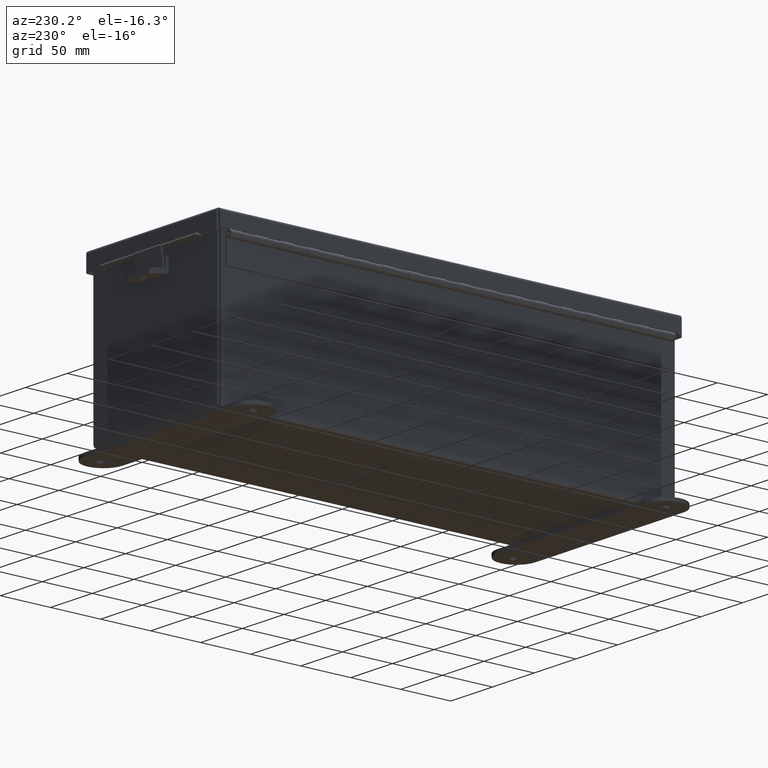
[diagram: clean part render]
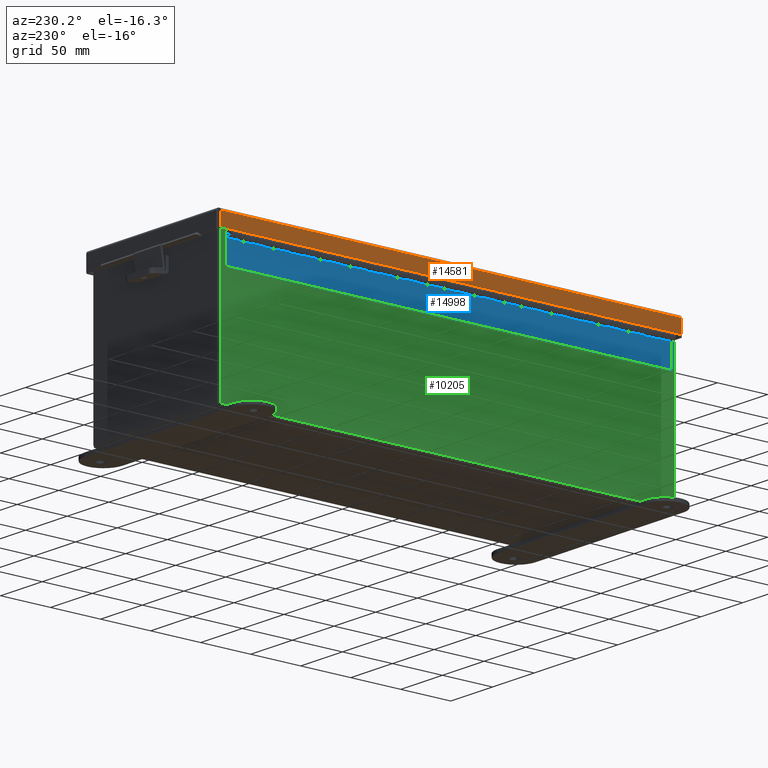
[diagram: same view with three faces highlighted in distinct colors, each labeled with its STEP entity id]
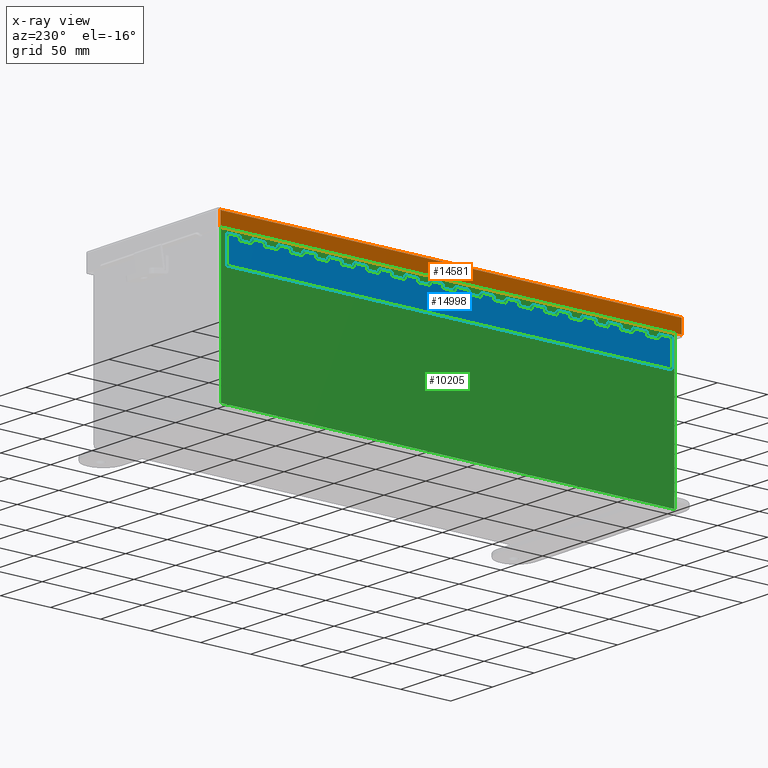
[diagram: x-ray of the same camera — body ghosted, the three highlighted faces saturated]
A machine part, auxiliary view with three faces highlighted in distinct colors.
The next image is the same camera in x-ray (body ghosted, the three faces saturated) — at least one of them is partly hidden behind the body in this view.
Their STEP definitions:

[orange] entity #14581 — the highlighted planar face has unit normal (1, -0, 0).
#373 = VERTEX_POINT ( 'NONE', #15086 ) ;
#503 = VECTOR ( 'NONE', #13393, 39.37007874015748100 ) ;
#731 = CARTESIAN_POINT ( 'NONE',  ( 3.156250000000004900, -9.074478932188125000, 0.5502999999999999000 ) ) ;
#1418 = LINE ( 'NONE', #7446, #503 ) ;
#2014 = EDGE_CURVE ( 'NONE', #16479, #373, #18198, .T. ) ;
#2129 = CARTESIAN_POINT ( 'NONE',  ( 3.156250000000005300, 9.074478932188142700, -5.463695987328526400E-015 ) ) ;
#2416 = ORIENTED_EDGE ( 'NONE', *, *, #2014, .T. ) ;
#2480 = EDGE_CURVE ( 'NONE', #373, #9408, #7404, .T. ) ;
#2581 = DIRECTION ( 'NONE',  ( 3.675400233576648500E-029, -1.000000000000000000, -1.735493991486226000E-029 ) ) ;
#3051 = CARTESIAN_POINT ( 'NONE',  ( 3.156250000000005300, -4.268512490100411300E-018, -1.311287036958846300E-014 ) ) ;
#3116 = CARTESIAN_POINT ( 'NONE',  ( 3.156249999999997800, -9.074478932188125000, 0.01300000000000010700 ) ) ;
#3522 = VECTOR ( 'NONE', #2581, 39.37007874015748100 ) ;
#3941 = ORIENTED_EDGE ( 'NONE', *, *, #2480, .T. ) ;
#4245 = CARTESIAN_POINT ( 'NONE',  ( 3.156250000000005300, -9.156249999999991100, 0.01300000000000010700 ) ) ;
#5043 = LINE ( 'NONE', #4245, #16287 ) ;
#6051 = DIRECTION ( 'NONE',  ( -1.000000000000000000, 3.684812725836437100E-029, 3.971430846686189200E-015 ) ) ;
#6520 = VECTOR ( 'NONE', #8001, 39.37007874015748100 ) ;
#6861 = VERTEX_POINT ( 'NONE', #3116 ) ;
#6881 = EDGE_CURVE ( 'NONE', #6861, #9408, #1418, .T. ) ;
#6928 = CARTESIAN_POINT ( 'NONE',  ( 3.156250000000012400, -4.268512490100411300E-018, 0.5502999999999999000 ) ) ;
#7404 = LINE ( 'NONE', #6928, #3522 ) ;
#7446 = CARTESIAN_POINT ( 'NONE',  ( 3.156249999999997800, -9.074478932188125000, 0.0000000000000000000 ) ) ;
#8001 = DIRECTION ( 'NONE',  ( 3.971430846686188400E-015, 1.731179908410793200E-029, 1.000000000000000000 ) ) ;
#8666 = EDGE_LOOP ( 'NONE', ( #9467, #2416, #3941, #11196 ) ) ;
#8955 = FACE_OUTER_BOUND ( 'NONE', #8666, .T. ) ;
#9408 = VERTEX_POINT ( 'NONE', #731 ) ;
#9467 = ORIENTED_EDGE ( 'NONE', *, *, #16279, .F. ) ;
#10513 = CARTESIAN_POINT ( 'NONE',  ( 3.156250000000005300, 9.074478932188142700, 0.01300000000000775700 ) ) ;
#11196 = ORIENTED_EDGE ( 'NONE', *, *, #6881, .F. ) ;
#11558 = DIRECTION ( 'NONE',  ( 3.675400233576648500E-029, -1.000000000000000000, -1.735493991486226000E-029 ) ) ;
#13393 = DIRECTION ( 'NONE',  ( 3.971430846686188400E-015, 1.731179908410793200E-029, 1.000000000000000000 ) ) ;
#14581 = ADVANCED_FACE ( 'NONE', ( #8955 ), #16238, .F. ) ;
#15086 = CARTESIAN_POINT ( 'NONE',  ( 3.156250000000012400, 9.074478932188142700, 0.5503000000000075600 ) ) ;
#16238 = PLANE ( 'NONE',  #16507 ) ;
#16279 = EDGE_CURVE ( 'NONE', #16479, #6861, #5043, .T. ) ;
#16287 = VECTOR ( 'NONE', #11558, 39.37007874015748100 ) ;
#16303 = DIRECTION ( 'NONE',  ( 3.971430846686189200E-015, 1.731179908410793200E-029, 1.000000000000000000 ) ) ;
#16479 = VERTEX_POINT ( 'NONE', #10513 ) ;
#16507 = AXIS2_PLACEMENT_3D ( 'NONE', #3051, #6051, #16303 ) ;
#18198 = LINE ( 'NONE', #2129, #6520 ) ;

[blue] entity #14998 — the highlighted planar face has unit normal (1, -0, 0).
#65 = CARTESIAN_POINT ( 'NONE',  ( 1.518907484477330300E-013, 5.000000000000004400, 0.0000000000000000000 ) ) ;
#104 = CARTESIAN_POINT ( 'NONE',  ( 0.1365000000000000400, 0.0000000000000000000, 0.0000000000000000000 ) ) ;
#171 = CARTESIAN_POINT ( 'NONE',  ( 1.354996604857474700E-013, 3.999999999999992500, 0.0000000000000000000 ) ) ;
#178 = VERTEX_POINT ( 'NONE', #18043 ) ;
#222 = VERTEX_POINT ( 'NONE', #15016 ) ;
#229 = VECTOR ( 'NONE', #15966, 39.37007874015748100 ) ;
#234 = VERTEX_POINT ( 'NONE', #13557 ) ;
#293 = EDGE_CURVE ( 'NONE', #15043, #4738, #5589, .T. ) ;
#322 = VECTOR ( 'NONE', #8156, 39.37007874015748100 ) ;
#336 = CARTESIAN_POINT ( 'NONE',  ( 1.365923996832131500E-013, 16.00000000000000400, 0.0000000000000000000 ) ) ;
#339 = EDGE_CURVE ( 'NONE', #7385, #8154, #16390, .T. ) ;
#405 = ORIENTED_EDGE ( 'NONE', *, *, #8654, .T. ) ;
#415 = EDGE_CURVE ( 'NONE', #18177, #14183, #18408, .T. ) ;
#426 = CARTESIAN_POINT ( 'NONE',  ( 0.1365000000000000400, 0.0000000000000000000, 0.0000000000000000000 ) ) ;
#535 = EDGE_CURVE ( 'NONE', #6333, #12339, #10463, .T. ) ;
#563 = LINE ( 'NONE', #18578, #3981 ) ;
#584 = CARTESIAN_POINT ( 'NONE',  ( 0.0000000000000000000, 5.500000000000001800, 8.195543980992789300E-015 ) ) ;
#589 = LINE ( 'NONE', #10715, #18206 ) ;
#602 = ORIENTED_EDGE ( 'NONE', *, *, #12588, .F. ) ;
#618 = EDGE_CURVE ( 'NONE', #178, #12213, #9514, .T. ) ;
#640 = VERTEX_POINT ( 'NONE', #2024 ) ;
#643 = DIRECTION ( 'NONE',  ( -1.092695613247542100E-028, 1.000000000000000000, -1.461323557691785800E-030 ) ) ;
#650 = EDGE_CURVE ( 'NONE', #16977, #13363, #841, .T. ) ;
#688 = CARTESIAN_POINT ( 'NONE',  ( 0.1365000000000000400, 0.0000000000000000000, 0.0000000000000000000 ) ) ;
#710 = VECTOR ( 'NONE', #11979, 39.37007874015748100 ) ;
#746 = VERTEX_POINT ( 'NONE', #11785 ) ;
#776 = VERTEX_POINT ( 'NONE', #15488 ) ;
#800 = VECTOR ( 'NONE', #17277, 39.37007874015748100 ) ;
#804 = LINE ( 'NONE', #688, #4236 ) ;
#841 = LINE ( 'NONE', #6807, #16435 ) ;
#851 = VECTOR ( 'NONE', #13511, 39.37007874015748100 ) ;
#868 = ORIENTED_EDGE ( 'NONE', *, *, #10454, .F. ) ;
#888 = VECTOR ( 'NONE', #7542, 39.37007874015748100 ) ;
#896 = EDGE_CURVE ( 'NONE', #222, #1819, #4955, .T. ) ;
#903 = CARTESIAN_POINT ( 'NONE',  ( 0.1365000000000000400, 5.500000000000001800, 8.195543980992789300E-015 ) ) ;
#911 = CARTESIAN_POINT ( 'NONE',  ( 0.1365000000000000400, 3.500000000000003600, 8.195543980992789300E-015 ) ) ;
#918 = ORIENTED_EDGE ( 'NONE', *, *, #2948, .F. ) ;
#938 = ORIENTED_EDGE ( 'NONE', *, *, #4802, .F. ) ;
#1006 = DIRECTION ( 'NONE',  ( -1.092695613247542100E-028, 1.000000000000000000, -1.461323557691785800E-030 ) ) ;
#1019 = DIRECTION ( 'NONE',  ( -1.092695613247542100E-028, 1.000000000000000000, -1.461323557691785800E-030 ) ) ;
#1107 = ORIENTED_EDGE ( 'NONE', *, *, #11463, .T. ) ;
#1193 = VECTOR ( 'NONE', #8323, 39.37007874015748100 ) ;
#1201 = CARTESIAN_POINT ( 'NONE',  ( 0.0000000000000000000, 14.50000000000000200, 0.0000000000000000000 ) ) ;
#1209 = VECTOR ( 'NONE', #5599, 39.37007874015748100 ) ;
#1252 = VECTOR ( 'NONE', #1815, 39.37007874015748100 ) ;
#1253 = CARTESIAN_POINT ( 'NONE',  ( 0.1365000000000000400, 3.000000000000001800, 8.195543980992789300E-015 ) ) ;
#1349 = CARTESIAN_POINT ( 'NONE',  ( 1.136499999999999800, 17.50000000000000000, 8.195543980992789300E-015 ) ) ;
#1393 = CARTESIAN_POINT ( 'NONE',  ( 0.1365000000000000400, 16.00000000000000400, 0.0000000000000000000 ) ) ;
#1453 = LINE ( 'NONE', #9646, #2357 ) ;
#1571 = DIRECTION ( 'NONE',  ( -1.092695613247542100E-028, 1.000000000000000000, -1.461323557691785800E-030 ) ) ;
#1575 = CARTESIAN_POINT ( 'NONE',  ( 0.0000000000000000000, 12.50000000000000000, 0.0000000000000000000 ) ) ;
#1701 = DIRECTION ( 'NONE',  ( -1.000000000000000000, 8.005415366049243300E-015, 3.549874073494553100E-029 ) ) ;
#1738 = CARTESIAN_POINT ( 'NONE',  ( 0.2730000000000000800, 15.50000000000000200, 8.195543980992789300E-015 ) ) ;
#1743 = DIRECTION ( 'NONE',  ( -1.000000000000000000, 8.005415366049243300E-015, 3.549874073494553100E-029 ) ) ;
#1751 = VECTOR ( 'NONE', #14186, 39.37007874015748100 ) ;
#1756 = EDGE_CURVE ( 'NONE', #16907, #14183, #11585, .T. ) ;
#1757 = ORIENTED_EDGE ( 'NONE', *, *, #16478, .F. ) ;
#1772 = DIRECTION ( 'NONE',  ( -1.092695613247542100E-028, 1.000000000000000000, -1.461323557691785800E-030 ) ) ;
#1775 = CARTESIAN_POINT ( 'NONE',  ( 0.1365000000000000400, 0.0000000000000000000, 0.0000000000000000000 ) ) ;
#1780 = CARTESIAN_POINT ( 'NONE',  ( 0.1365000000000000400, 0.0000000000000000000, 0.0000000000000000000 ) ) ;
#1815 = DIRECTION ( 'NONE',  ( -1.092695613247542100E-028, 1.000000000000000000, -1.461323557691785800E-030 ) ) ;
#1819 = VERTEX_POINT ( 'NONE', #16362 ) ;
#2004 = EDGE_CURVE ( 'NONE', #3380, #13252, #3539, .T. ) ;
#2021 = ORIENTED_EDGE ( 'NONE', *, *, #14543, .F. ) ;
#2024 = CARTESIAN_POINT ( 'NONE',  ( 0.1365000000000000400, 5.999999999999999100, 0.0000000000000000000 ) ) ;
#2064 = ORIENTED_EDGE ( 'NONE', *, *, #10334, .F. ) ;
#2075 = VECTOR ( 'NONE', #10911, 39.37007874015748100 ) ;
#2101 = CARTESIAN_POINT ( 'NONE',  ( 0.1365000000000000400, 0.0000000000000000000, 0.0000000000000000000 ) ) ;
#2118 = VECTOR ( 'NONE', #6732, 39.37007874015748100 ) ;
#2136 = CARTESIAN_POINT ( 'NONE',  ( 1.354996604857474700E-013, 11.00000000000000200, 0.0000000000000000000 ) ) ;
#2349 = VERTEX_POINT ( 'NONE', #4284 ) ;
#2357 = VECTOR ( 'NONE', #2363, 39.37007874015748100 ) ;
#2363 = DIRECTION ( 'NONE',  ( -1.092695613247542100E-028, 1.000000000000000000, -1.461323557691785800E-030 ) ) ;
#2364 = LINE ( 'NONE', #171, #5339 ) ;
#2393 = LINE ( 'NONE', #11246, #17063 ) ;
#2441 = DIRECTION ( 'NONE',  ( -1.092695613247542100E-028, 1.000000000000000000, -1.461323557691785800E-030 ) ) ;
#2454 = EDGE_CURVE ( 'NONE', #746, #13665, #563, .T. ) ;
#2516 = DIRECTION ( 'NONE',  ( -1.000000000000000000, 1.092695613247542100E-028, 3.549874073494553100E-029 ) ) ;
#2604 = ORIENTED_EDGE ( 'NONE', *, *, #14782, .F. ) ;
#2666 = CARTESIAN_POINT ( 'NONE',  ( 1.365923996832131500E-013, 5.999999999999999100, 0.0000000000000000000 ) ) ;
#2667 = EDGE_CURVE ( 'NONE', #16233, #15399, #9001, .T. ) ;
#2683 = CARTESIAN_POINT ( 'NONE',  ( 0.1365000000000000400, 12.50000000000000000, 0.0000000000000000000 ) ) ;
#2745 = CARTESIAN_POINT ( 'NONE',  ( 0.2730000000000000800, 10.00000000000000000, 0.0000000000000000000 ) ) ;
#2790 = ORIENTED_EDGE ( 'NONE', *, *, #1756, .T. ) ;
#2834 = EDGE_CURVE ( 'NONE', #16977, #5472, #9668, .T. ) ;
#2864 = EDGE_CURVE ( 'NONE', #15626, #16895, #5800, .T. ) ;
#2871 = EDGE_CURVE ( 'NONE', #9118, #13060, #1453, .T. ) ;
#2920 = EDGE_CURVE ( 'NONE', #13482, #11402, #16122, .T. ) ;
#2948 = EDGE_CURVE ( 'NONE', #13308, #5395, #8300, .T. ) ;
#3030 = ORIENTED_EDGE ( 'NONE', *, *, #3484, .T. ) ;
#3042 = LINE ( 'NONE', #8181, #2118 ) ;
#3096 = ORIENTED_EDGE ( 'NONE', *, *, #6526, .F. ) ;
#3159 = DIRECTION ( 'NONE',  ( -1.000000000000000000, 8.005415366049243300E-015, 3.549874073494553100E-029 ) ) ;
#3187 = ORIENTED_EDGE ( 'NONE', *, *, #9208, .F. ) ;
#3194 = ORIENTED_EDGE ( 'NONE', *, *, #9472, .F. ) ;
#3200 = CARTESIAN_POINT ( 'NONE',  ( 0.1365000000000000400, 0.0000000000000000000, 0.0000000000000000000 ) ) ;
#3216 = CARTESIAN_POINT ( 'NONE',  ( 0.2730000000000000800, 4.499999999999998200, 0.0000000000000000000 ) ) ;
#3252 = VECTOR ( 'NONE', #6641, 39.37007874015748100 ) ;
#3303 = DIRECTION ( 'NONE',  ( -1.092695613247542100E-028, 1.000000000000000000, -1.461323557691785800E-030 ) ) ;
#3311 = VECTOR ( 'NONE', #9815, 39.37007874015748100 ) ;
#3344 = DIRECTION ( 'NONE',  ( -1.092695613247542100E-028, 1.000000000000000000, -1.461323557691785800E-030 ) ) ;
#3380 = VERTEX_POINT ( 'NONE', #7859 ) ;
#3472 = CARTESIAN_POINT ( 'NONE',  ( 0.1365000000000000400, 17.00000000000000000, 8.195543980992789300E-015 ) ) ;
#3478 = VECTOR ( 'NONE', #18715, 39.37007874015748100 ) ;
#3484 = EDGE_CURVE ( 'NONE', #14896, #12894, #7624, .T. ) ;
#3539 = LINE ( 'NONE', #16791, #6970 ) ;
#3772 = DIRECTION ( 'NONE',  ( -1.000000000000000000, 8.005415366049243300E-015, 3.549874073494553100E-029 ) ) ;
#3838 = VERTEX_POINT ( 'NONE', #16155 ) ;
#3846 = CARTESIAN_POINT ( 'NONE',  ( 0.1365000000000000400, 0.0000000000000000000, 0.0000000000000000000 ) ) ;
#3856 = DIRECTION ( 'NONE',  ( -1.092695613247542100E-028, 1.000000000000000000, -1.461323557691785800E-030 ) ) ;
#3899 = CARTESIAN_POINT ( 'NONE',  ( 1.365923996832131500E-013, 7.999999999999984900, 0.0000000000000000000 ) ) ;
#3942 = CARTESIAN_POINT ( 'NONE',  ( 0.2730000000000000800, 8.999999999999984000, 8.195543980992789300E-015 ) ) ;
#3981 = VECTOR ( 'NONE', #2516, 39.37007874015748100 ) ;
#4022 = CARTESIAN_POINT ( 'NONE',  ( 0.2730000000000153400, 5.000000000000000000, 8.195543980992789300E-015 ) ) ;
#4064 = CARTESIAN_POINT ( 'NONE',  ( 0.1365000000000000400, 0.0000000000000000000, 0.0000000000000000000 ) ) ;
#4073 = EDGE_CURVE ( 'NONE', #18383, #15043, #18228, .T. ) ;
#4089 = EDGE_CURVE ( 'NONE', #10154, #13308, #14391, .T. ) ;
#4132 = EDGE_CURVE ( 'NONE', #18968, #234, #9499, .T. ) ;
#4196 = ORIENTED_EDGE ( 'NONE', *, *, #12660, .T. ) ;
#4236 = VECTOR ( 'NONE', #10938, 39.37007874015748100 ) ;
#4284 = CARTESIAN_POINT ( 'NONE',  ( 0.2730000000000000800, 5.999999999999999100, 0.0000000000000000000 ) ) ;
#4288 = DIRECTION ( 'NONE',  ( -1.000000000000000000, 1.092695613247542100E-028, 3.549874073494553100E-029 ) ) ;
#4328 = CARTESIAN_POINT ( 'NONE',  ( 0.1365000000000000400, 0.0000000000000000000, 0.0000000000000000000 ) ) ;
#4335 = DIRECTION ( 'NONE',  ( -1.092695613247542100E-028, 1.000000000000000000, -1.461323557691785800E-030 ) ) ;
#4349 = CARTESIAN_POINT ( 'NONE',  ( 0.1365000000000000400, 14.00000000000000200, 0.0000000000000000000 ) ) ;
#4434 = CARTESIAN_POINT ( 'NONE',  ( 0.0000000000000000000, 11.50000000000000200, 8.195543980992789300E-015 ) ) ;
#4458 = ORIENTED_EDGE ( 'NONE', *, *, #11208, .F. ) ;
#4480 = DIRECTION ( 'NONE',  ( -1.000000000000000000, 8.005415366049243300E-015, 3.549874073494553100E-029 ) ) ;
#4644 = CARTESIAN_POINT ( 'NONE',  ( 0.2730000000000000800, 2.999999999999997300, 8.195543980992789300E-015 ) ) ;
#4669 = VECTOR ( 'NONE', #9089, 39.37007874015748100 ) ;
#4671 = DIRECTION ( 'NONE',  ( -1.092695613247542100E-028, 1.000000000000000000, -1.461323557691785800E-030 ) ) ;
#4687 = EDGE_CURVE ( 'NONE', #14896, #15399, #804, .T. ) ;
#4702 = CARTESIAN_POINT ( 'NONE',  ( 0.2730000000000000800, 16.00000000000000000, 0.0000000000000000000 ) ) ;
#4738 = VERTEX_POINT ( 'NONE', #15491 ) ;
#4742 = LINE ( 'NONE', #10507, #851 ) ;
#4749 = VERTEX_POINT ( 'NONE', #6700 ) ;
#4767 = VECTOR ( 'NONE', #16266, 39.37007874015748100 ) ;
#4779 = ORIENTED_EDGE ( 'NONE', *, *, #16964, .T. ) ;
#4786 = LINE ( 'NONE', #14904, #888 ) ;
#4802 = EDGE_CURVE ( 'NONE', #234, #9832, #17526, .T. ) ;
#4809 = LINE ( 'NONE', #9383, #12181 ) ;
#4811 = EDGE_CURVE ( 'NONE', #11775, #6333, #2393, .T. ) ;
#4814 = VECTOR ( 'NONE', #1701, 39.37007874015748100 ) ;
#4850 = CARTESIAN_POINT ( 'NONE',  ( 0.0000000000000000000, 6.499999999999984000, 0.0000000000000000000 ) ) ;
#4929 = VECTOR ( 'NONE', #15268, 39.37007874015748100 ) ;
#4955 = LINE ( 'NONE', #12107, #16196 ) ;
#4965 = VECTOR ( 'NONE', #14198, 39.37007874015748100 ) ;
#4995 = ORIENTED_EDGE ( 'NONE', *, *, #10194, .T. ) ;
#5004 = CARTESIAN_POINT ( 'NONE',  ( 0.1365000000000000400, 0.0000000000000000000, 0.0000000000000000000 ) ) ;
#5025 = ORIENTED_EDGE ( 'NONE', *, *, #10949, .F. ) ;
#5064 = ORIENTED_EDGE ( 'NONE', *, *, #15419, .F. ) ;
#5071 = VERTEX_POINT ( 'NONE', #16244 ) ;
#5078 = LINE ( 'NONE', #18577, #1193 ) ;
#5094 = LINE ( 'NONE', #1201, #1209 ) ;
#5147 = EDGE_CURVE ( 'NONE', #14219, #13366, #8554, .T. ) ;
#5165 = ORIENTED_EDGE ( 'NONE', *, *, #18779, .F. ) ;
#5224 = CARTESIAN_POINT ( 'NONE',  ( 0.2730000000000000800, -10.00000000000003000, 0.0000000000000000000 ) ) ;
#5238 = DIRECTION ( 'NONE',  ( -1.000000000000000000, 8.005415366049243300E-015, 3.549874073494553100E-029 ) ) ;
#5270 = CARTESIAN_POINT ( 'NONE',  ( 0.2730000000000000800, 11.99999999999999800, 0.0000000000000000000 ) ) ;
#5301 = ORIENTED_EDGE ( 'NONE', *, *, #4811, .F. ) ;
#5308 = VERTEX_POINT ( 'NONE', #16684 ) ;
#5336 = EDGE_CURVE ( 'NONE', #5071, #11402, #5816, .T. ) ;
#5339 = VECTOR ( 'NONE', #14801, 39.37007874015748100 ) ;
#5343 = DIRECTION ( 'NONE',  ( -1.092695613247542100E-028, 1.000000000000000000, -1.461323557691785800E-030 ) ) ;
#5372 = CARTESIAN_POINT ( 'NONE',  ( 0.1365000000000000400, 0.0000000000000000000, 0.0000000000000000000 ) ) ;
#5395 = VERTEX_POINT ( 'NONE', #15264 ) ;
#5472 = VERTEX_POINT ( 'NONE', #4022 ) ;
#5589 = LINE ( 'NONE', #7813, #1252 ) ;
#5590 = DIRECTION ( 'NONE',  ( -1.000000000000000000, 1.092695613247542100E-028, 3.549874073494553100E-029 ) ) ;
#5598 = VECTOR ( 'NONE', #1019, 39.37007874015748100 ) ;
#5599 = DIRECTION ( 'NONE',  ( -1.000000000000000000, 1.092695613247542100E-028, 3.549874073494553100E-029 ) ) ;
#5600 = EDGE_CURVE ( 'NONE', #16654, #15848, #12942, .T. ) ;
#5736 = CARTESIAN_POINT ( 'NONE',  ( 0.2730000000000000800, 3.999999999999992500, 0.0000000000000000000 ) ) ;
#5800 = LINE ( 'NONE', #18429, #16585 ) ;
#5816 = LINE ( 'NONE', #584, #13187 ) ;
#5837 = VECTOR ( 'NONE', #1006, 39.37007874015748100 ) ;
#5899 = ORIENTED_EDGE ( 'NONE', *, *, #18862, .F. ) ;
#5904 = CARTESIAN_POINT ( 'NONE',  ( 0.1365000000000000400, 10.00000000000000000, 0.0000000000000000000 ) ) ;
#5918 = DIRECTION ( 'NONE',  ( -1.000000000000000000, 8.005415366049243300E-015, 3.549874073494553100E-029 ) ) ;
#6006 = VECTOR ( 'NONE', #13260, 39.37007874015748100 ) ;
#6045 = VERTEX_POINT ( 'NONE', #14291 ) ;
#6134 = ORIENTED_EDGE ( 'NONE', *, *, #9522, .F. ) ;
#6271 = LINE ( 'NONE', #1575, #17497 ) ;
#6310 = LINE ( 'NONE', #8678, #17538 ) ;
#6333 = VERTEX_POINT ( 'NONE', #4702 ) ;
#6348 = ORIENTED_EDGE ( 'NONE', *, *, #17575, .F. ) ;
#6401 = VECTOR ( 'NONE', #16859, 39.37007874015748100 ) ;
#6411 = ORIENTED_EDGE ( 'NONE', *, *, #2864, .F. ) ;
#6422 = DIRECTION ( 'NONE',  ( -1.000000000000000000, 1.092695613247542100E-028, 3.549874073494553100E-029 ) ) ;
#6434 = ORIENTED_EDGE ( 'NONE', *, *, #17525, .F. ) ;
#6488 = DIRECTION ( 'NONE',  ( -1.092695613247542100E-028, 1.000000000000000000, -1.461323557691785800E-030 ) ) ;
#6511 = VECTOR ( 'NONE', #1743, 39.37007874015748100 ) ;
#6526 = EDGE_CURVE ( 'NONE', #12563, #5308, #3042, .T. ) ;
#6570 = VECTOR ( 'NONE', #3159, 39.37007874015748100 ) ;
#6571 = VERTEX_POINT ( 'NONE', #8245 ) ;
#6641 = DIRECTION ( 'NONE',  ( -1.092695613247542100E-028, 1.000000000000000000, -1.461323557691785800E-030 ) ) ;
#6653 = VECTOR ( 'NONE', #5590, 39.37007874015748100 ) ;
#6654 = CARTESIAN_POINT ( 'NONE',  ( 1.354996604857474700E-013, 14.00000000000000200, 0.0000000000000000000 ) ) ;
#6661 = CARTESIAN_POINT ( 'NONE',  ( 0.2730000000000000800, -12.00000000000000400, 0.0000000000000000000 ) ) ;
#6671 = LINE ( 'NONE', #16736, #16983 ) ;
#6700 = CARTESIAN_POINT ( 'NONE',  ( 0.2730000000000000800, 13.50000000000000200, 8.195543980992789300E-015 ) ) ;
#6713 = VERTEX_POINT ( 'NONE', #11572 ) ;
#6732 = DIRECTION ( 'NONE',  ( -1.092695613247542100E-028, 1.000000000000000000, -1.461323557691785800E-030 ) ) ;
#6807 = CARTESIAN_POINT ( 'NONE',  ( 0.0000000000000000000, 4.499999999999998200, 0.0000000000000000000 ) ) ;
#6813 = CARTESIAN_POINT ( 'NONE',  ( 0.1365000000000000400, 2.500000000000000000, 0.0000000000000000000 ) ) ;
#6851 = CARTESIAN_POINT ( 'NONE',  ( 1.136500000000000300, -1.748382715945128500E-014, 8.195543980992789300E-015 ) ) ;
#6908 = ORIENTED_EDGE ( 'NONE', *, *, #13302, .T. ) ;
#6912 = DIRECTION ( 'NONE',  ( -1.092695613247542100E-028, 1.000000000000000000, -1.461323557691785800E-030 ) ) ;
#6940 = CARTESIAN_POINT ( 'NONE',  ( 0.2730000000000000800, 12.99999999999999800, 8.195543980992789300E-015 ) ) ;
#6970 = VECTOR ( 'NONE', #10905, 39.37007874015748100 ) ;
#6997 = DIRECTION ( 'NONE',  ( -1.000000000000000000, 1.092695613247542100E-028, 3.549874073494553100E-029 ) ) ;
#7048 = ORIENTED_EDGE ( 'NONE', *, *, #12324, .F. ) ;
#7165 = VERTEX_POINT ( 'NONE', #11098 ) ;
#7244 = DIRECTION ( 'NONE',  ( -1.000000000000000000, 1.092695613247542100E-028, 3.549874073494553100E-029 ) ) ;
#7252 = ORIENTED_EDGE ( 'NONE', *, *, #15836, .F. ) ;
#7278 = ORIENTED_EDGE ( 'NONE', *, *, #5600, .F. ) ;
#7338 = DIRECTION ( 'NONE',  ( -1.000000000000000000, 8.005415366049243300E-015, 3.549874073494553100E-029 ) ) ;
#7360 = LINE ( 'NONE', #2666, #3478 ) ;
#7385 = VERTEX_POINT ( 'NONE', #14589 ) ;
#7467 = CARTESIAN_POINT ( 'NONE',  ( 0.1365000000000000400, 0.0000000000000000000, 0.0000000000000000000 ) ) ;
#7531 = VERTEX_POINT ( 'NONE', #13764 ) ;
#7542 = DIRECTION ( 'NONE',  ( -1.000000000000000000, 1.092695613247542100E-028, 3.549874073494553100E-029 ) ) ;
#7601 = CARTESIAN_POINT ( 'NONE',  ( 1.354996604857474700E-013, 2.000000000000002700, 0.0000000000000000000 ) ) ;
#7624 = LINE ( 'NONE', #16953, #322 ) ;
#7641 = CARTESIAN_POINT ( 'NONE',  ( 0.2730000000000000800, 11.00000000000000000, 8.195543980992789300E-015 ) ) ;
#7813 = CARTESIAN_POINT ( 'NONE',  ( 0.1365000000000000400, 0.0000000000000000000, 0.0000000000000000000 ) ) ;
#7833 = CARTESIAN_POINT ( 'NONE',  ( 0.1365000000000153300, 5.000000000000000000, 8.195543980992789300E-015 ) ) ;
#7848 = LINE ( 'NONE', #4328, #15648 ) ;
#7859 = CARTESIAN_POINT ( 'NONE',  ( 1.136499999999999800, 17.50000000000000000, 8.195543980992789300E-015 ) ) ;
#7867 = CARTESIAN_POINT ( 'NONE',  ( 0.2730000000000000800, 7.999999999999984900, 0.0000000000000000000 ) ) ;
#7877 = CARTESIAN_POINT ( 'NONE',  ( 0.1365000000000000400, 0.0000000000000000000, 0.0000000000000000000 ) ) ;
#7881 = VECTOR ( 'NONE', #4480, 39.37007874015748100 ) ;
#7912 = AXIS2_PLACEMENT_3D ( 'NONE', #1349, #13098, #4288 ) ;
#7946 = CARTESIAN_POINT ( 'NONE',  ( 0.2730000000000000800, 0.9999999999999992200, 8.195543980992789300E-015 ) ) ;
#7963 = VECTOR ( 'NONE', #9370, 39.37007874015748100 ) ;
#8058 = EDGE_CURVE ( 'NONE', #640, #6571, #8550, .T. ) ;
#8154 = VERTEX_POINT ( 'NONE', #18360 ) ;
#8156 = DIRECTION ( 'NONE',  ( 1.000000000000000000, -1.092695613247542100E-028, -3.549874073494553100E-029 ) ) ;
#8181 = CARTESIAN_POINT ( 'NONE',  ( 0.2730000000000000800, 0.0000000000000000000, 0.0000000000000000000 ) ) ;
#8245 = CARTESIAN_POINT ( 'NONE',  ( 0.1365000000000000400, 6.499999999999984000, 0.0000000000000000000 ) ) ;
#8300 = LINE ( 'NONE', #18617, #11567 ) ;
#8323 = DIRECTION ( 'NONE',  ( -1.092695613247542100E-028, 1.000000000000000000, -1.461323557691785800E-030 ) ) ;
#8409 = LINE ( 'NONE', #2101, #7963 ) ;
#8430 = LINE ( 'NONE', #12562, #15779 ) ;
#8456 = CARTESIAN_POINT ( 'NONE',  ( 1.365923996832131500E-013, 8.999999999999984000, 0.0000000000000000000 ) ) ;
#8484 = CARTESIAN_POINT ( 'NONE',  ( 0.0000000000000000000, 8.499999999999985800, 0.0000000000000000000 ) ) ;
#8503 = ORIENTED_EDGE ( 'NONE', *, *, #11452, .T. ) ;
#8550 = LINE ( 'NONE', #3200, #11557 ) ;
#8554 = LINE ( 'NONE', #12033, #9016 ) ;
#8570 = LINE ( 'NONE', #8484, #800 ) ;
#8614 = ORIENTED_EDGE ( 'NONE', *, *, #12100, .F. ) ;
#8654 = EDGE_CURVE ( 'NONE', #7165, #6571, #17943, .T. ) ;
#8678 = CARTESIAN_POINT ( 'NONE',  ( 0.1365000000000000400, 0.0000000000000000000, 0.0000000000000000000 ) ) ;
#8722 = ORIENTED_EDGE ( 'NONE', *, *, #5147, .F. ) ;
#8809 = LINE ( 'NONE', #16195, #4929 ) ;
#8842 = LINE ( 'NONE', #9777, #4965 ) ;
#8956 = ORIENTED_EDGE ( 'NONE', *, *, #339, .F. ) ;
#8965 = EDGE_CURVE ( 'NONE', #3838, #4738, #5094, .T. ) ;
#9001 = LINE ( 'NONE', #17758, #4669 ) ;
#9016 = VECTOR ( 'NONE', #1772, 39.37007874015748100 ) ;
#9089 = DIRECTION ( 'NONE',  ( -1.000000000000000000, 1.092695613247542100E-028, 3.549874073494553100E-029 ) ) ;
#9118 = VERTEX_POINT ( 'NONE', #14806 ) ;
#9132 = VECTOR ( 'NONE', #14979, 39.37007874015748100 ) ;
#9208 = EDGE_CURVE ( 'NONE', #14718, #13252, #13625, .T. ) ;
#9370 = DIRECTION ( 'NONE',  ( -1.092695613247542100E-028, 1.000000000000000000, -1.461323557691785800E-030 ) ) ;
#9383 = CARTESIAN_POINT ( 'NONE',  ( 0.2730000000000000800, -12.99999999999999800, 8.195543980992789300E-015 ) ) ;
#9407 = LINE ( 'NONE', #104, #16773 ) ;
#9413 = VECTOR ( 'NONE', #3856, 39.37007874015748100 ) ;
#9472 = EDGE_CURVE ( 'NONE', #5071, #2349, #13380, .T. ) ;
#9477 = LINE ( 'NONE', #12755, #5598 ) ;
#9492 = LINE ( 'NONE', #17017, #16856 ) ;
#9499 = LINE ( 'NONE', #3899, #1751 ) ;
#9502 = CARTESIAN_POINT ( 'NONE',  ( 0.1365000000000000400, 0.5000000000000017800, 0.0000000000000000000 ) ) ;
#9514 = LINE ( 'NONE', #426, #12537 ) ;
#9522 = EDGE_CURVE ( 'NONE', #10953, #15626, #5078, .T. ) ;
#9579 = EDGE_CURVE ( 'NONE', #3838, #16252, #15851, .T. ) ;
#9587 = LINE ( 'NONE', #13513, #9132 ) ;
#9646 = CARTESIAN_POINT ( 'NONE',  ( 0.2730000000000000800, -8.000000000000032000, 0.0000000000000000000 ) ) ;
#9658 = CARTESIAN_POINT ( 'NONE',  ( 0.2730000000000000800, -11.00000000000000000, 8.195543980992789300E-015 ) ) ;
#9668 = LINE ( 'NONE', #6661, #13173 ) ;
#9777 = CARTESIAN_POINT ( 'NONE',  ( 1.639108796198557900E-014, 15.50000000000000200, 8.195543980992789300E-015 ) ) ;
#9792 = VERTEX_POINT ( 'NONE', #10539 ) ;
#9800 = DIRECTION ( 'NONE',  ( -1.000000000000000000, 1.092695613247542100E-028, 3.549874073494553100E-029 ) ) ;
#9815 = DIRECTION ( 'NONE',  ( -1.092695613247542100E-028, 1.000000000000000000, -1.461323557691785800E-030 ) ) ;
#9832 = VERTEX_POINT ( 'NONE', #16514 ) ;
#9837 = VECTOR ( 'NONE', #12858, 39.37007874015748100 ) ;
#9848 = CARTESIAN_POINT ( 'NONE',  ( 0.1365000000000000400, 15.00000000000000000, 8.195543980992789300E-015 ) ) ;
#9932 = DIRECTION ( 'NONE',  ( -1.000000000000000000, 8.005415366049243300E-015, 3.549874073494553100E-029 ) ) ;
#9971 = VECTOR ( 'NONE', #5238, 39.37007874015748100 ) ;
#10076 = ORIENTED_EDGE ( 'NONE', *, *, #17253, .T. ) ;
#10148 = DIRECTION ( 'NONE',  ( -1.092695613247542100E-028, 1.000000000000000000, -1.461323557691785800E-030 ) ) ;
#10154 = VERTEX_POINT ( 'NONE', #6940 ) ;
#10161 = ORIENTED_EDGE ( 'NONE', *, *, #13340, .F. ) ;
#10180 = ORIENTED_EDGE ( 'NONE', *, *, #14540, .F. ) ;
#10194 = EDGE_CURVE ( 'NONE', #14834, #776, #17893, .T. ) ;
#10204 = CARTESIAN_POINT ( 'NONE',  ( 0.1365000000000000400, 17.50000000000000000, 8.195543980992789300E-015 ) ) ;
#10207 = VERTEX_POINT ( 'NONE', #1253 ) ;
#10246 = ORIENTED_EDGE ( 'NONE', *, *, #12410, .F. ) ;
#10290 = LINE ( 'NONE', #8456, #12343 ) ;
#10292 = LINE ( 'NONE', #5004, #6401 ) ;
#10309 = LINE ( 'NONE', #11299, #14712 ) ;
#10311 = CARTESIAN_POINT ( 'NONE',  ( 0.2730000000000000800, 11.50000000000000200, 8.195543980992789300E-015 ) ) ;
#10332 = DIRECTION ( 'NONE',  ( -1.000000000000000000, 1.092695613247542100E-028, 3.549874073494553100E-029 ) ) ;
#10334 = EDGE_CURVE ( 'NONE', #14258, #178, #11716, .T. ) ;
#10345 = CARTESIAN_POINT ( 'NONE',  ( 0.1365000000000000400, 1.500000000000000900, 8.195543980992789300E-015 ) ) ;
#10408 = ORIENTED_EDGE ( 'NONE', *, *, #18371, .T. ) ;
#10454 = EDGE_CURVE ( 'NONE', #15848, #18177, #15162, .T. ) ;
#10463 = LINE ( 'NONE', #336, #6570 ) ;
#10491 = ORIENTED_EDGE ( 'NONE', *, *, #293, .F. ) ;
#10507 = CARTESIAN_POINT ( 'NONE',  ( 0.2730000000000000800, -3.000000000000032400, 8.195543980992789300E-015 ) ) ;
#10539 = CARTESIAN_POINT ( 'NONE',  ( 0.2730000000000000800, 6.999999999999981300, 8.195543980992789300E-015 ) ) ;
#10573 = ORIENTED_EDGE ( 'NONE', *, *, #8965, .T. ) ;
#10683 = DIRECTION ( 'NONE',  ( -1.000000000000000000, 1.092695613247542100E-028, 3.549874073494553100E-029 ) ) ;
#10715 = CARTESIAN_POINT ( 'NONE',  ( 0.0000000000000000000, 10.50000000000000200, 0.0000000000000000000 ) ) ;
#10905 = DIRECTION ( 'NONE',  ( -1.000000000000000000, 1.092695613247542400E-028, 3.549874073494553700E-029 ) ) ;
#10911 = DIRECTION ( 'NONE',  ( -1.000000000000000000, 8.005415366049243300E-015, 3.549874073494553100E-029 ) ) ;
#10938 = DIRECTION ( 'NONE',  ( -1.092695613247542100E-028, 1.000000000000000000, -1.461323557691785800E-030 ) ) ;
#10949 = EDGE_CURVE ( 'NONE', #13060, #7385, #10290, .T. ) ;
#10953 = VERTEX_POINT ( 'NONE', #11429 ) ;
#11098 = CARTESIAN_POINT ( 'NONE',  ( 0.2730000000000000800, 6.499999999999984000, 0.0000000000000000000 ) ) ;
#11144 = DIRECTION ( 'NONE',  ( -1.000000000000000000, 8.005415366049243300E-015, 3.549874073494553100E-029 ) ) ;
#11145 = ORIENTED_EDGE ( 'NONE', *, *, #16758, .F. ) ;
#11181 = LINE ( 'NONE', #7467, #4767 ) ;
#11182 = VERTEX_POINT ( 'NONE', #11951 ) ;
#11183 = ORIENTED_EDGE ( 'NONE', *, *, #5336, .T. ) ;
#11202 = EDGE_LOOP ( 'NONE', ( #16956, #17964, #3030, #8503, #15776, #3187, #10180, #3096, #10076, #2021, #16887, #5301, #1107, #15149, #15675, #12428, #10573, #10491, #16470, #4458, #18423, #918, #11890, #11145, #6908, #14437, #2064, #2604, #2790, #16082, #868, #7278, #10408, #12317, #6411, #6134, #13251, #8956, #5025, #13058, #4196, #938, #18124, #10246, #4995, #15915, #5165, #5064, #405, #18691, #18343, #3194, #11183, #17486, #6434, #12419, #12350, #7048, #10161, #18634, #14502, #6348, #1757, #8722, #4779, #7252, #5899, #15239, #14239, #13341, #8614, #602 ) ) ;
#11208 = EDGE_CURVE ( 'NONE', #4749, #18383, #4742, .T. ) ;
#11246 = CARTESIAN_POINT ( 'NONE',  ( 0.2730000000000000800, -0.9999999999999992200, 8.195543980992789300E-015 ) ) ;
#11288 = CARTESIAN_POINT ( 'NONE',  ( 0.1365000000000000400, 2.000000000000002700, 0.0000000000000000000 ) ) ;
#11299 = CARTESIAN_POINT ( 'NONE',  ( 0.0000000000000000000, 9.499999999999985800, 8.195543980992789300E-015 ) ) ;
#11366 = CARTESIAN_POINT ( 'NONE',  ( 1.354996604857474700E-013, 15.00000000000000000, 0.0000000000000000000 ) ) ;
#11402 = VERTEX_POINT ( 'NONE', #903 ) ;
#11429 = CARTESIAN_POINT ( 'NONE',  ( 0.2730000000000000800, 9.499999999999985800, 8.195543980992789300E-015 ) ) ;
#11452 = EDGE_CURVE ( 'NONE', #12894, #3380, #16665, .T. ) ;
#11463 = EDGE_CURVE ( 'NONE', #11775, #14085, #8842, .T. ) ;
#11486 = VERTEX_POINT ( 'NONE', #9848 ) ;
#11503 = LINE ( 'NONE', #5224, #3252 ) ;
#11539 = DIRECTION ( 'NONE',  ( -1.000000000000000000, 1.092695613247542100E-028, 3.549874073494553100E-029 ) ) ;
#11557 = VECTOR ( 'NONE', #4671, 39.37007874015748100 ) ;
#11567 = VECTOR ( 'NONE', #6912, 39.37007874015748100 ) ;
#11572 = CARTESIAN_POINT ( 'NONE',  ( 0.1365000000000000400, 10.50000000000000200, 0.0000000000000000000 ) ) ;
#11585 = LINE ( 'NONE', #4434, #18421 ) ;
#11613 = PLANE ( 'NONE',  #7912 ) ;
#11660 = LINE ( 'NONE', #65, #15552 ) ;
#11716 = LINE ( 'NONE', #11963, #4814 ) ;
#11762 = CARTESIAN_POINT ( 'NONE',  ( 0.0000000000000000000, 1.500000000000000900, 8.195543980992789300E-015 ) ) ;
#11775 = VERTEX_POINT ( 'NONE', #1738 ) ;
#11785 = CARTESIAN_POINT ( 'NONE',  ( 0.2730000000000000800, 3.500000000000003600, 8.195543980992789300E-015 ) ) ;
#11845 = CARTESIAN_POINT ( 'NONE',  ( 0.1365000000000000400, 13.00000000000000200, 8.195543980992789300E-015 ) ) ;
#11890 = ORIENTED_EDGE ( 'NONE', *, *, #4089, .F. ) ;
#11951 = CARTESIAN_POINT ( 'NONE',  ( 0.1365000000000000400, 3.999999999999992500, 0.0000000000000000000 ) ) ;
#11963 = CARTESIAN_POINT ( 'NONE',  ( 1.354996604857474700E-013, 12.00000000000000200, 0.0000000000000000000 ) ) ;
#11979 = DIRECTION ( 'NONE',  ( -1.092695613247542100E-028, 1.000000000000000000, -1.461323557691785800E-030 ) ) ;
#12033 = CARTESIAN_POINT ( 'NONE',  ( 0.2730000000000000800, -14.00000000000000200, 0.0000000000000000000 ) ) ;
#12100 = EDGE_CURVE ( 'NONE', #16621, #13759, #9492, .T. ) ;
#12107 = CARTESIAN_POINT ( 'NONE',  ( 0.2730000000000000800, -15.00000000000000500, 8.195543980992789300E-015 ) ) ;
#12178 = CARTESIAN_POINT ( 'NONE',  ( 1.136500000000000300, -1.748382715945128500E-014, 8.195543980992789300E-015 ) ) ;
#12181 = VECTOR ( 'NONE', #643, 39.37007874015748100 ) ;
#12213 = VERTEX_POINT ( 'NONE', #2683 ) ;
#12302 = VERTEX_POINT ( 'NONE', #5736 ) ;
#12317 = ORIENTED_EDGE ( 'NONE', *, *, #16650, .F. ) ;
#12324 = EDGE_CURVE ( 'NONE', #11182, #13363, #6310, .T. ) ;
#12329 = VECTOR ( 'NONE', #18568, 39.37007874015748100 ) ;
#12339 = VERTEX_POINT ( 'NONE', #1393 ) ;
#12343 = VECTOR ( 'NONE', #9932, 39.37007874015748100 ) ;
#12350 = ORIENTED_EDGE ( 'NONE', *, *, #650, .T. ) ;
#12387 = VECTOR ( 'NONE', #2441, 39.37007874015748100 ) ;
#12389 = VERTEX_POINT ( 'NONE', #10345 ) ;
#12410 = EDGE_CURVE ( 'NONE', #14834, #18968, #8809, .T. ) ;
#12416 = LINE ( 'NONE', #1780, #710 ) ;
#12417 = CARTESIAN_POINT ( 'NONE',  ( 0.1365000000000000400, 11.50000000000000200, 8.195543980992789300E-015 ) ) ;
#12419 = ORIENTED_EDGE ( 'NONE', *, *, #2834, .F. ) ;
#12428 = ORIENTED_EDGE ( 'NONE', *, *, #9579, .F. ) ;
#12537 = VECTOR ( 'NONE', #16934, 39.37007874015748100 ) ;
#12562 = CARTESIAN_POINT ( 'NONE',  ( 0.0000000000000000000, 16.50000000000000000, 0.0000000000000000000 ) ) ;
#12563 = VERTEX_POINT ( 'NONE', #15623 ) ;
#12588 = EDGE_CURVE ( 'NONE', #16233, #16621, #9477, .T. ) ;
#12660 = EDGE_CURVE ( 'NONE', #9118, #9832, #8570, .T. ) ;
#12755 = CARTESIAN_POINT ( 'NONE',  ( 0.2730000000000153400, -16.00000000000000000, 0.0000000000000000000 ) ) ;
#12858 = DIRECTION ( 'NONE',  ( -1.000000000000000000, 8.005415366049243300E-015, 3.549874073494553100E-029 ) ) ;
#12874 = FACE_OUTER_BOUND ( 'NONE', #11202, .T. ) ;
#12894 = VERTEX_POINT ( 'NONE', #12178 ) ;
#12928 = CARTESIAN_POINT ( 'NONE',  ( 0.0000000000000000000, 7.499999999999987600, 8.195543980992789300E-015 ) ) ;
#12942 = LINE ( 'NONE', #13150, #16811 ) ;
#13021 = CARTESIAN_POINT ( 'NONE',  ( 0.2730000000000000800, -2.000000000000033300, 0.0000000000000000000 ) ) ;
#13058 = ORIENTED_EDGE ( 'NONE', *, *, #2871, .F. ) ;
#13060 = VERTEX_POINT ( 'NONE', #3942 ) ;
#13098 = DIRECTION ( 'NONE',  ( -3.549874073494553100E-029, 1.461323557691415200E-030, -1.000000000000000000 ) ) ;
#13149 = VECTOR ( 'NONE', #13532, 39.37007874015748100 ) ;
#13150 = CARTESIAN_POINT ( 'NONE',  ( 0.2729999999999989700, -6.000000000000034600, 0.0000000000000000000 ) ) ;
#13173 = VECTOR ( 'NONE', #15454, 39.37007874015748100 ) ;
#13187 = VECTOR ( 'NONE', #18106, 39.37007874015748100 ) ;
#13251 = ORIENTED_EDGE ( 'NONE', *, *, #16169, .T. ) ;
#13252 = VERTEX_POINT ( 'NONE', #10204 ) ;
#13260 = DIRECTION ( 'NONE',  ( -1.000000000000000000, 1.092695613247542100E-028, 3.549874073494553100E-029 ) ) ;
#13302 = EDGE_CURVE ( 'NONE', #16847, #12213, #6271, .T. ) ;
#13308 = VERTEX_POINT ( 'NONE', #11845 ) ;
#13340 = EDGE_CURVE ( 'NONE', #12302, #11182, #2364, .T. ) ;
#13341 = ORIENTED_EDGE ( 'NONE', *, *, #17785, .F. ) ;
#13355 = LINE ( 'NONE', #14524, #17667 ) ;
#13363 = VERTEX_POINT ( 'NONE', #17777 ) ;
#13366 = VERTEX_POINT ( 'NONE', #4644 ) ;
#13375 = LINE ( 'NONE', #16174, #15199 ) ;
#13380 = LINE ( 'NONE', #9658, #9413 ) ;
#13470 = CARTESIAN_POINT ( 'NONE',  ( 0.1365000000000153300, 15.50000000000000200, 8.195543980992789300E-015 ) ) ;
#13482 = VERTEX_POINT ( 'NONE', #7833 ) ;
#13511 = DIRECTION ( 'NONE',  ( -1.092695613247542100E-028, 1.000000000000000000, -1.461323557691785800E-030 ) ) ;
#13513 = CARTESIAN_POINT ( 'NONE',  ( 1.354996604857474700E-013, 3.000000000000001800, 0.0000000000000000000 ) ) ;
#13532 = DIRECTION ( 'NONE',  ( -1.092695613247542100E-028, 1.000000000000000000, -1.461323557691785800E-030 ) ) ;
#13557 = CARTESIAN_POINT ( 'NONE',  ( 0.1365000000000000400, 7.999999999999984900, 0.0000000000000000000 ) ) ;
#13625 = LINE ( 'NONE', #1775, #13149 ) ;
#13665 = VERTEX_POINT ( 'NONE', #911 ) ;
#13738 = VERTEX_POINT ( 'NONE', #11288 ) ;
#13759 = VERTEX_POINT ( 'NONE', #15769 ) ;
#13764 = CARTESIAN_POINT ( 'NONE',  ( 0.1365000000000000400, 6.999999999999981300, 8.195543980992789300E-015 ) ) ;
#13924 = EDGE_CURVE ( 'NONE', #7531, #776, #7848, .T. ) ;
#14085 = VERTEX_POINT ( 'NONE', #13470 ) ;
#14183 = VERTEX_POINT ( 'NONE', #12417 ) ;
#14186 = DIRECTION ( 'NONE',  ( -1.000000000000000000, 8.005415366049243300E-015, 3.549874073494553100E-029 ) ) ;
#14198 = DIRECTION ( 'NONE',  ( -1.000000000000000000, 1.092695613247542100E-028, 3.549874073494553100E-029 ) ) ;
#14219 = VERTEX_POINT ( 'NONE', #15420 ) ;
#14239 = ORIENTED_EDGE ( 'NONE', *, *, #14512, .T. ) ;
#14258 = VERTEX_POINT ( 'NONE', #5270 ) ;
#14291 = CARTESIAN_POINT ( 'NONE',  ( 0.1365000000000000400, 16.50000000000000000, 0.0000000000000000000 ) ) ;
#14308 = VERTEX_POINT ( 'NONE', #6813 ) ;
#14391 = LINE ( 'NONE', #16906, #9971 ) ;
#14427 = EDGE_CURVE ( 'NONE', #2349, #640, #7360, .T. ) ;
#14437 = ORIENTED_EDGE ( 'NONE', *, *, #618, .F. ) ;
#14502 = ORIENTED_EDGE ( 'NONE', *, *, #2454, .T. ) ;
#14506 = DIRECTION ( 'NONE',  ( -1.092695613247542100E-028, 1.000000000000000000, -1.461323557691785800E-030 ) ) ;
#14512 = EDGE_CURVE ( 'NONE', #222, #12389, #17686, .T. ) ;
#14524 = CARTESIAN_POINT ( 'NONE',  ( 0.0000000000000000000, 13.50000000000000200, 8.195543980992789300E-015 ) ) ;
#14532 = CARTESIAN_POINT ( 'NONE',  ( 0.1365000000000000400, 0.0000000000000000000, 0.0000000000000000000 ) ) ;
#14540 = EDGE_CURVE ( 'NONE', #5308, #14718, #13375, .T. ) ;
#14543 = EDGE_CURVE ( 'NONE', #12339, #6045, #9407, .T. ) ;
#14589 = CARTESIAN_POINT ( 'NONE',  ( 0.1365000000000000400, 8.999999999999984000, 8.195543980992789300E-015 ) ) ;
#14623 = DIRECTION ( 'NONE',  ( -1.092695613247542100E-028, 1.000000000000000000, -1.461323557691785800E-030 ) ) ;
#14712 = VECTOR ( 'NONE', #9800, 39.37007874015748100 ) ;
#14718 = VERTEX_POINT ( 'NONE', #3472 ) ;
#14775 = CARTESIAN_POINT ( 'NONE',  ( 1.365923996832131500E-013, 6.999999999999985800, 0.0000000000000000000 ) ) ;
#14782 = EDGE_CURVE ( 'NONE', #16907, #14258, #6671, .T. ) ;
#14801 = DIRECTION ( 'NONE',  ( -1.000000000000000000, 8.005415366049243300E-015, 3.549874073494553100E-029 ) ) ;
#14806 = CARTESIAN_POINT ( 'NONE',  ( 0.2730000000000000800, 8.499999999999985800, 0.0000000000000000000 ) ) ;
#14834 = VERTEX_POINT ( 'NONE', #18305 ) ;
#14896 = VERTEX_POINT ( 'NONE', #3846 ) ;
#14904 = CARTESIAN_POINT ( 'NONE',  ( 0.0000000000000000000, 2.500000000000000000, 0.0000000000000000000 ) ) ;
#14979 = DIRECTION ( 'NONE',  ( -1.000000000000000000, 8.005415366049243300E-015, 3.549874073494553100E-029 ) ) ;
#14983 = EDGE_CURVE ( 'NONE', #4749, #5395, #13355, .T. ) ;
#14998 = ADVANCED_FACE ( 'NONE', ( #12874 ), #11613, .F. ) ;
#15016 = CARTESIAN_POINT ( 'NONE',  ( 0.2730000000000000800, 1.500000000000000900, 8.195543980992789300E-015 ) ) ;
#15043 = VERTEX_POINT ( 'NONE', #4349 ) ;
#15149 = ORIENTED_EDGE ( 'NONE', *, *, #16798, .F. ) ;
#15162 = LINE ( 'NONE', #2136, #2075 ) ;
#15199 = VECTOR ( 'NONE', #5918, 39.37007874015748100 ) ;
#15228 = CARTESIAN_POINT ( 'NONE',  ( 0.2730000000000000800, 14.00000000000000000, 0.0000000000000000000 ) ) ;
#15239 = ORIENTED_EDGE ( 'NONE', *, *, #896, .F. ) ;
#15264 = CARTESIAN_POINT ( 'NONE',  ( 0.1365000000000000400, 13.50000000000000200, 8.195543980992789300E-015 ) ) ;
#15268 = DIRECTION ( 'NONE',  ( -1.092695613247542100E-028, 1.000000000000000000, -1.461323557691785800E-030 ) ) ;
#15317 = EDGE_CURVE ( 'NONE', #746, #12302, #4809, .T. ) ;
#15399 = VERTEX_POINT ( 'NONE', #9502 ) ;
#15401 = CARTESIAN_POINT ( 'NONE',  ( 0.2730000000000000800, 10.50000000000000200, 0.0000000000000000000 ) ) ;
#15410 = VECTOR ( 'NONE', #14506, 39.37007874015748100 ) ;
#15419 = EDGE_CURVE ( 'NONE', #7165, #9792, #11503, .T. ) ;
#15420 = CARTESIAN_POINT ( 'NONE',  ( 0.2730000000000000800, 2.500000000000000000, 0.0000000000000000000 ) ) ;
#15454 = DIRECTION ( 'NONE',  ( -1.092695613247542100E-028, 1.000000000000000000, -1.461323557691785800E-030 ) ) ;
#15488 = CARTESIAN_POINT ( 'NONE',  ( 0.1365000000000000400, 7.499999999999987600, 8.195543980992789300E-015 ) ) ;
#15491 = CARTESIAN_POINT ( 'NONE',  ( 0.1365000000000000400, 14.50000000000000200, 0.0000000000000000000 ) ) ;
#15552 = VECTOR ( 'NONE', #7338, 39.37007874015748100 ) ;
#15623 = CARTESIAN_POINT ( 'NONE',  ( 0.2730000000000000800, 16.50000000000000000, 0.0000000000000000000 ) ) ;
#15626 = VERTEX_POINT ( 'NONE', #2745 ) ;
#15639 = DIRECTION ( 'NONE',  ( -1.092695613247542100E-028, 1.000000000000000000, -1.461323557691785800E-030 ) ) ;
#15648 = VECTOR ( 'NONE', #14623, 39.37007874015748100 ) ;
#15675 = ORIENTED_EDGE ( 'NONE', *, *, #16190, .F. ) ;
#15769 = CARTESIAN_POINT ( 'NONE',  ( 0.1365000000000000400, 0.9999999999999992200, 8.195543980992789300E-015 ) ) ;
#15776 = ORIENTED_EDGE ( 'NONE', *, *, #2004, .T. ) ;
#15779 = VECTOR ( 'NONE', #16965, 39.37007874015748100 ) ;
#15798 = LINE ( 'NONE', #14532, #229 ) ;
#15836 = EDGE_CURVE ( 'NONE', #13738, #14308, #12416, .T. ) ;
#15838 = CARTESIAN_POINT ( 'NONE',  ( 0.2730000000000000800, 0.5000000000000017800, 0.0000000000000000000 ) ) ;
#15848 = VERTEX_POINT ( 'NONE', #7641 ) ;
#15851 = LINE ( 'NONE', #13021, #15410 ) ;
#15915 = ORIENTED_EDGE ( 'NONE', *, *, #13924, .F. ) ;
#15918 = VECTOR ( 'NONE', #15639, 39.37007874015748100 ) ;
#15919 = VECTOR ( 'NONE', #3344, 39.37007874015748100 ) ;
#15966 = DIRECTION ( 'NONE',  ( -1.092695613247542100E-028, 1.000000000000000000, -1.461323557691785800E-030 ) ) ;
#16082 = ORIENTED_EDGE ( 'NONE', *, *, #415, .F. ) ;
#16122 = LINE ( 'NONE', #5372, #15918 ) ;
#16149 = LINE ( 'NONE', #14775, #7881 ) ;
#16155 = CARTESIAN_POINT ( 'NONE',  ( 0.2730000000000000800, 14.50000000000000200, 0.0000000000000000000 ) ) ;
#16169 = EDGE_CURVE ( 'NONE', #10953, #8154, #10309, .T. ) ;
#16174 = CARTESIAN_POINT ( 'NONE',  ( 1.365923996832131500E-013, 17.00000000000000000, 0.0000000000000000000 ) ) ;
#16181 = CARTESIAN_POINT ( 'NONE',  ( 0.1365000000000000400, 11.00000000000000200, 8.195543980992789300E-015 ) ) ;
#16190 = EDGE_CURVE ( 'NONE', #16252, #11486, #17651, .T. ) ;
#16195 = CARTESIAN_POINT ( 'NONE',  ( 0.2730000000000000800, -9.000000000000035500, 8.195543980992789300E-015 ) ) ;
#16196 = VECTOR ( 'NONE', #3303, 39.37007874015748100 ) ;
#16233 = VERTEX_POINT ( 'NONE', #15838 ) ;
#16244 = CARTESIAN_POINT ( 'NONE',  ( 0.2730000000000000800, 5.500000000000001800, 8.195543980992789300E-015 ) ) ;
#16252 = VERTEX_POINT ( 'NONE', #18713 ) ;
#16266 = DIRECTION ( 'NONE',  ( -1.092695613247542100E-028, 1.000000000000000000, -1.461323557691785800E-030 ) ) ;
#16268 = LINE ( 'NONE', #17046, #12387 ) ;
#16362 = CARTESIAN_POINT ( 'NONE',  ( 0.2730000000000000800, 1.999999999999998400, 0.0000000000000000000 ) ) ;
#16390 = LINE ( 'NONE', #7877, #15919 ) ;
#16435 = VECTOR ( 'NONE', #6997, 39.37007874015748100 ) ;
#16470 = ORIENTED_EDGE ( 'NONE', *, *, #4073, .F. ) ;
#16478 = EDGE_CURVE ( 'NONE', #13366, #10207, #9587, .T. ) ;
#16514 = CARTESIAN_POINT ( 'NONE',  ( 0.1365000000000000400, 8.499999999999985800, 0.0000000000000000000 ) ) ;
#16585 = VECTOR ( 'NONE', #11144, 39.37007874015748100 ) ;
#16621 = VERTEX_POINT ( 'NONE', #7946 ) ;
#16650 = EDGE_CURVE ( 'NONE', #16895, #6713, #10292, .T. ) ;
#16654 = VERTEX_POINT ( 'NONE', #15401 ) ;
#16665 = LINE ( 'NONE', #6851, #12329 ) ;
#16684 = CARTESIAN_POINT ( 'NONE',  ( 0.2730000000000000800, 17.00000000000000000, 8.195543980992789300E-015 ) ) ;
#16736 = CARTESIAN_POINT ( 'NONE',  ( 0.2730000000000000800, -5.000000000000031100, 8.195543980992789300E-015 ) ) ;
#16758 = EDGE_CURVE ( 'NONE', #16847, #10154, #16268, .T. ) ;
#16773 = VECTOR ( 'NONE', #1571, 39.37007874015748100 ) ;
#16791 = CARTESIAN_POINT ( 'NONE',  ( 0.0000000000000000000, 17.50000000000000000, 8.195543980992789300E-015 ) ) ;
#16798 = EDGE_CURVE ( 'NONE', #11486, #14085, #15798, .T. ) ;
#16811 = VECTOR ( 'NONE', #4335, 39.37007874015748100 ) ;
#16847 = VERTEX_POINT ( 'NONE', #17494 ) ;
#16856 = VECTOR ( 'NONE', #17086, 39.37007874015748100 ) ;
#16859 = DIRECTION ( 'NONE',  ( -1.092695613247542100E-028, 1.000000000000000000, -1.461323557691785800E-030 ) ) ;
#16887 = ORIENTED_EDGE ( 'NONE', *, *, #535, .F. ) ;
#16895 = VERTEX_POINT ( 'NONE', #5904 ) ;
#16906 = CARTESIAN_POINT ( 'NONE',  ( 1.354996604857474700E-013, 13.00000000000000200, 0.0000000000000000000 ) ) ;
#16907 = VERTEX_POINT ( 'NONE', #10311 ) ;
#16934 = DIRECTION ( 'NONE',  ( -1.092695613247542100E-028, 1.000000000000000000, -1.461323557691785800E-030 ) ) ;
#16953 = CARTESIAN_POINT ( 'NONE',  ( 0.0000000000000000000, 0.0000000000000000000, 0.0000000000000000000 ) ) ;
#16956 = ORIENTED_EDGE ( 'NONE', *, *, #2667, .T. ) ;
#16964 = EDGE_CURVE ( 'NONE', #14219, #14308, #4786, .T. ) ;
#16965 = DIRECTION ( 'NONE',  ( -1.000000000000000000, 1.092695613247542100E-028, 3.549874073494553100E-029 ) ) ;
#16977 = VERTEX_POINT ( 'NONE', #3216 ) ;
#16983 = VECTOR ( 'NONE', #6488, 39.37007874015748100 ) ;
#17017 = CARTESIAN_POINT ( 'NONE',  ( 1.354996604857474700E-013, 0.9999999999999992200, 0.0000000000000000000 ) ) ;
#17046 = CARTESIAN_POINT ( 'NONE',  ( 0.2730000000000000800, -4.000000000000036400, 0.0000000000000000000 ) ) ;
#17063 = VECTOR ( 'NONE', #5343, 39.37007874015748100 ) ;
#17086 = DIRECTION ( 'NONE',  ( -1.000000000000000000, 8.005415366049243300E-015, 3.549874073494553100E-029 ) ) ;
#17253 = EDGE_CURVE ( 'NONE', #12563, #6045, #8430, .T. ) ;
#17277 = DIRECTION ( 'NONE',  ( -1.000000000000000000, 1.092695613247542100E-028, 3.549874073494553100E-029 ) ) ;
#17483 = VECTOR ( 'NONE', #10683, 39.37007874015748100 ) ;
#17486 = ORIENTED_EDGE ( 'NONE', *, *, #2920, .F. ) ;
#17494 = CARTESIAN_POINT ( 'NONE',  ( 0.2730000000000000800, 12.50000000000000000, 0.0000000000000000000 ) ) ;
#17497 = VECTOR ( 'NONE', #10332, 39.37007874015748100 ) ;
#17525 = EDGE_CURVE ( 'NONE', #5472, #13482, #11660, .T. ) ;
#17526 = LINE ( 'NONE', #18530, #5837 ) ;
#17538 = VECTOR ( 'NONE', #10148, 39.37007874015748100 ) ;
#17575 = EDGE_CURVE ( 'NONE', #10207, #13665, #11181, .T. ) ;
#17651 = LINE ( 'NONE', #11366, #9837 ) ;
#17667 = VECTOR ( 'NONE', #11539, 39.37007874015748100 ) ;
#17686 = LINE ( 'NONE', #11762, #6006 ) ;
#17758 = CARTESIAN_POINT ( 'NONE',  ( 0.0000000000000000000, 0.5000000000000017800, 0.0000000000000000000 ) ) ;
#17777 = CARTESIAN_POINT ( 'NONE',  ( 0.1365000000000000400, 4.499999999999998200, 0.0000000000000000000 ) ) ;
#17785 = EDGE_CURVE ( 'NONE', #13759, #12389, #8409, .T. ) ;
#17790 = VECTOR ( 'NONE', #3772, 39.37007874015748100 ) ;
#17893 = LINE ( 'NONE', #12928, #6653 ) ;
#17943 = LINE ( 'NONE', #4850, #17483 ) ;
#17964 = ORIENTED_EDGE ( 'NONE', *, *, #4687, .F. ) ;
#18043 = CARTESIAN_POINT ( 'NONE',  ( 0.1365000000000000400, 12.00000000000000200, 0.0000000000000000000 ) ) ;
#18106 = DIRECTION ( 'NONE',  ( -1.000000000000000000, 1.092695613247542100E-028, 3.549874073494553100E-029 ) ) ;
#18124 = ORIENTED_EDGE ( 'NONE', *, *, #4132, .F. ) ;
#18177 = VERTEX_POINT ( 'NONE', #16181 ) ;
#18206 = VECTOR ( 'NONE', #6422, 39.37007874015748100 ) ;
#18228 = LINE ( 'NONE', #6654, #17790 ) ;
#18305 = CARTESIAN_POINT ( 'NONE',  ( 0.2730000000000000800, 7.499999999999987600, 8.195543980992789300E-015 ) ) ;
#18343 = ORIENTED_EDGE ( 'NONE', *, *, #14427, .F. ) ;
#18360 = CARTESIAN_POINT ( 'NONE',  ( 0.1365000000000000400, 9.499999999999985800, 8.195543980992789300E-015 ) ) ;
#18371 = EDGE_CURVE ( 'NONE', #16654, #6713, #589, .T. ) ;
#18383 = VERTEX_POINT ( 'NONE', #15228 ) ;
#18408 = LINE ( 'NONE', #4064, #3311 ) ;
#18421 = VECTOR ( 'NONE', #7244, 39.37007874015748100 ) ;
#18423 = ORIENTED_EDGE ( 'NONE', *, *, #14983, .T. ) ;
#18429 = CARTESIAN_POINT ( 'NONE',  ( 1.365923996832131500E-013, 10.00000000000000000, 0.0000000000000000000 ) ) ;
#18530 = CARTESIAN_POINT ( 'NONE',  ( 0.1365000000000000400, 0.0000000000000000000, 0.0000000000000000000 ) ) ;
#18568 = DIRECTION ( 'NONE',  ( -7.805279982007337000E-018, 1.000000000000000000, -7.498523569503599000E-031 ) ) ;
#18577 = CARTESIAN_POINT ( 'NONE',  ( 0.2730000000000000800, -7.000000000000029300, 8.195543980992789300E-015 ) ) ;
#18578 = CARTESIAN_POINT ( 'NONE',  ( 0.0000000000000000000, 3.500000000000003600, 8.195543980992789300E-015 ) ) ;
#18617 = CARTESIAN_POINT ( 'NONE',  ( 0.1365000000000000400, 0.0000000000000000000, 0.0000000000000000000 ) ) ;
#18634 = ORIENTED_EDGE ( 'NONE', *, *, #15317, .F. ) ;
#18640 = LINE ( 'NONE', #7601, #6511 ) ;
#18691 = ORIENTED_EDGE ( 'NONE', *, *, #8058, .F. ) ;
#18713 = CARTESIAN_POINT ( 'NONE',  ( 0.2729999999999989700, 14.99999999999999800, 8.195543980992789300E-015 ) ) ;
#18715 = DIRECTION ( 'NONE',  ( -1.000000000000000000, 8.005415366049243300E-015, 3.549874073494553100E-029 ) ) ;
#18779 = EDGE_CURVE ( 'NONE', #9792, #7531, #16149, .T. ) ;
#18862 = EDGE_CURVE ( 'NONE', #1819, #13738, #18640, .T. ) ;
#18968 = VERTEX_POINT ( 'NONE', #7867 ) ;

[green] entity #10205 — the highlighted planar face has unit normal (1, 0, 0).
#115 = CARTESIAN_POINT ( 'NONE',  ( -2.999999999999998700, 8.925299999999998200, 0.01299999999999984300 ) ) ;
#788 = DIRECTION ( 'NONE',  ( -3.455316574900958600E-015, 0.0000000000000000000, 1.000000000000000000 ) ) ;
#854 = DIRECTION ( 'NONE',  ( 0.0000000000000000000, 1.000000000000000000, 0.0000000000000000000 ) ) ;
#1070 = VERTEX_POINT ( 'NONE', #9478 ) ;
#1118 = VERTEX_POINT ( 'NONE', #18384 ) ;
#1518 = DIRECTION ( 'NONE',  ( -1.057600265830623300E-031, 1.000000000000000000, 3.060791226809479400E-017 ) ) ;
#1610 = VERTEX_POINT ( 'NONE', #15150 ) ;
#3184 = ORIENTED_EDGE ( 'NONE', *, *, #7149, .T. ) ;
#3633 = VERTEX_POINT ( 'NONE', #9889 ) ;
#4133 = FACE_OUTER_BOUND ( 'NONE', #11230, .T. ) ;
#4743 = AXIS2_PLACEMENT_3D ( 'NONE', #15852, #17325, #8527 ) ;
#5110 = LINE ( 'NONE', #11101, #8528 ) ;
#5355 = CARTESIAN_POINT ( 'NONE',  ( -2.999999999999998700, 8.925299999999998200, -1.062859610035002400E-014 ) ) ;
#5618 = LINE ( 'NONE', #5355, #13469 ) ;
#7149 = EDGE_CURVE ( 'NONE', #3633, #1070, #18792, .T. ) ;
#7335 = ORIENTED_EDGE ( 'NONE', *, *, #14003, .F. ) ;
#8527 = DIRECTION ( 'NONE',  ( 3.455316574900958600E-015, 0.0000000000000000000, -1.000000000000000000 ) ) ;
#8528 = VECTOR ( 'NONE', #854, 39.37007874015748100 ) ;
#9478 = CARTESIAN_POINT ( 'NONE',  ( -3.000000000000018700, -8.925299999999992900, 5.837599999999999200 ) ) ;
#9889 = CARTESIAN_POINT ( 'NONE',  ( -2.999999999999998700, -8.925299999999998200, 0.01299999999999929700 ) ) ;
#9893 = VECTOR ( 'NONE', #1518, 39.37007874015748100 ) ;
#10205 = ADVANCED_FACE ( 'NONE', ( #4133 ), #14423, .F. ) ;
#10233 = ORIENTED_EDGE ( 'NONE', *, *, #12091, .T. ) ;
#10899 = ORIENTED_EDGE ( 'NONE', *, *, #13632, .T. ) ;
#11038 = CARTESIAN_POINT ( 'NONE',  ( -2.999999999999998700, -8.925299999999998200, -1.062859610035002400E-014 ) ) ;
#11101 = CARTESIAN_POINT ( 'NONE',  ( -3.000000000000018700, -8.925299999999998200, 5.837599999999999200 ) ) ;
#11230 = EDGE_LOOP ( 'NONE', ( #10899, #10233, #7335, #3184 ) ) ;
#12091 = EDGE_CURVE ( 'NONE', #1118, #1610, #5618, .T. ) ;
#13469 = VECTOR ( 'NONE', #15619, 39.37007874015748100 ) ;
#13632 = EDGE_CURVE ( 'NONE', #1070, #1118, #5110, .T. ) ;
#14003 = EDGE_CURVE ( 'NONE', #3633, #1610, #17703, .T. ) ;
#14423 = PLANE ( 'NONE',  #4743 ) ;
#15150 = CARTESIAN_POINT ( 'NONE',  ( -2.999999999999998700, 8.925299999999998200, 0.01299999999999956900 ) ) ;
#15619 = DIRECTION ( 'NONE',  ( 3.455316574900958600E-015, 0.0000000000000000000, -1.000000000000000000 ) ) ;
#15852 = CARTESIAN_POINT ( 'NONE',  ( -2.999999999999998700, 0.0000000000000000000, -1.062859610035002400E-014 ) ) ;
#17325 = DIRECTION ( 'NONE',  ( 1.000000000000000000, 0.0000000000000000000, 3.455316574900958600E-015 ) ) ;
#17703 = LINE ( 'NONE', #115, #9893 ) ;
#18332 = VECTOR ( 'NONE', #788, 39.37007874015748100 ) ;
#18384 = CARTESIAN_POINT ( 'NONE',  ( -3.000000000000018700, 8.925299999999998200, 5.837599999999999200 ) ) ;
#18792 = LINE ( 'NONE', #11038, #18332 ) ;